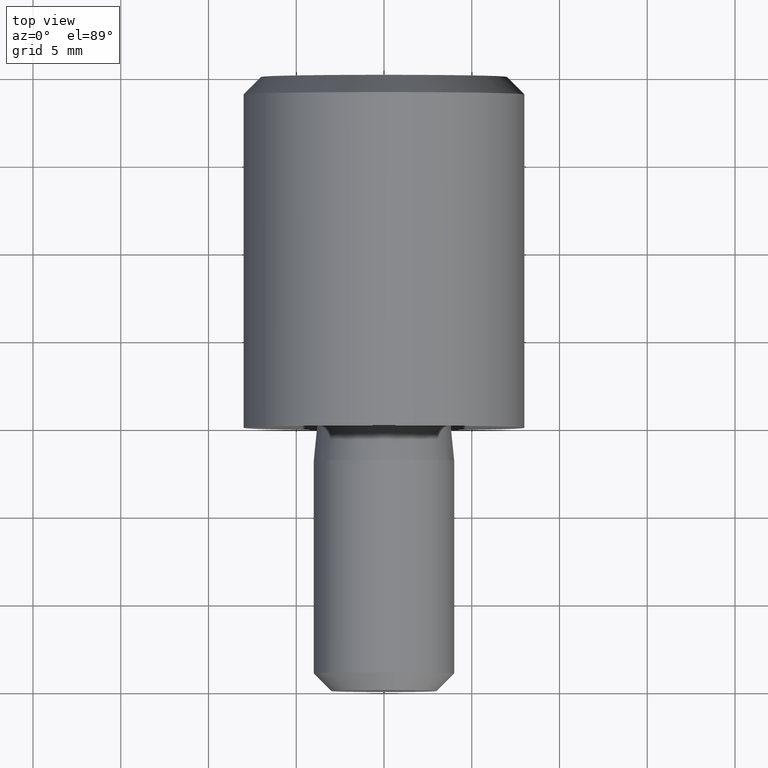
[diagram: clean part render]
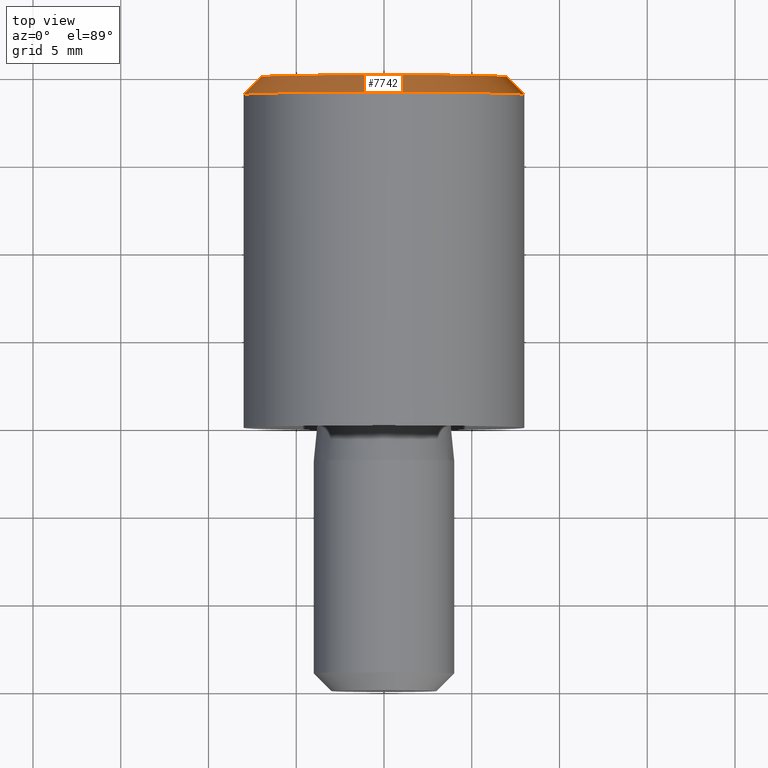
[diagram: same view with one face highlighted and labeled with its STEP entity id]
A machine part, top view. The second image highlights one B-rep face of the part: STEP entity #7742.
In plain terms, the highlighted conical surface has half-angle 45 deg.
Its self-contained STEP definition (entity closure, byte-faithful):
#344 = CARTESIAN_POINT ( 'NONE',  ( 1.685159948091755500E-015, 19.00000000000000400, 0.0000000000000000000 ) ) ;
#564 = ORIENTED_EDGE ( 'NONE', *, *, #11886, .F. ) ;
#690 = DIRECTION ( 'NONE',  ( -4.956352788505160300E-017, -1.000000000000000000, -0.0000000000000000000 ) ) ;
#817 = CARTESIAN_POINT ( 'NONE',  ( -7.999999999999998200, 19.00000000000000400, 9.797174393178825700E-016 ) ) ;
#1193 = DIRECTION ( 'NONE',  ( -1.000000000000000000, 0.0000000000000000000, 0.0000000000000000000 ) ) ;
#1604 = ORIENTED_EDGE ( 'NONE', *, *, #3293, .F. ) ;
#2697 = DIRECTION ( 'NONE',  ( -0.7071067811865463500, -0.7071067811865487900, 8.659560562354919300E-017 ) ) ;
#2805 = CIRCLE ( 'NONE', #7272, 8.000000000000000000 ) ;
#2941 = ORIENTED_EDGE ( 'NONE', *, *, #3878, .F. ) ;
#3032 = FACE_OUTER_BOUND ( 'NONE', #4842, .T. ) ;
#3118 = CARTESIAN_POINT ( 'NONE',  ( 1.734723475976806900E-015, 20.00000000000000000, 0.0000000000000000000 ) ) ;
#3293 = EDGE_CURVE ( 'NONE', #6011, #12555, #11040, .T. ) ;
#3427 = DIRECTION ( 'NONE',  ( 0.7071067811865463500, -0.7071067811865487900, 0.0000000000000000000 ) ) ;
#3625 = DIRECTION ( 'NONE',  ( -1.000000000000000000, 0.0000000000000000000, 0.0000000000000000000 ) ) ;
#3878 = EDGE_CURVE ( 'NONE', #11097, #6011, #8965, .T. ) ;
#4177 = CARTESIAN_POINT ( 'NONE',  ( 8.000000000000001800, 19.00000000000000400, 0.0000000000000000000 ) ) ;
#4842 = EDGE_LOOP ( 'NONE', ( #2941, #12314, #564, #1604 ) ) ;
#5059 = DIRECTION ( 'NONE',  ( 4.956352788505162800E-017, 1.000000000000000000, 0.0000000000000000000 ) ) ;
#5762 = DIRECTION ( 'NONE',  ( 1.000000000000000000, 0.0000000000000000000, 0.0000000000000000000 ) ) ;
#6011 = VERTEX_POINT ( 'NONE', #6721 ) ;
#6550 = CARTESIAN_POINT ( 'NONE',  ( 8.000000000000001800, 19.00000000000000400, 0.0000000000000000000 ) ) ;
#6687 = CONICAL_SURFACE ( 'NONE', #11587, 8.000000000000000000, 0.7853981633974466100 ) ;
#6721 = CARTESIAN_POINT ( 'NONE',  ( 7.000000000000008000, 20.00000000000000000, 0.0000000000000000000 ) ) ;
#7095 = AXIS2_PLACEMENT_3D ( 'NONE', #3118, #5059, #1193 ) ;
#7272 = AXIS2_PLACEMENT_3D ( 'NONE', #7859, #690, #3625 ) ;
#7742 = ADVANCED_FACE ( 'NONE', ( #3032 ), #6687, .T. ) ;
#7859 = CARTESIAN_POINT ( 'NONE',  ( 1.685159948091755500E-015, 19.00000000000000400, 0.0000000000000000000 ) ) ;
#8182 = VECTOR ( 'NONE', #3427, 1000.000000000000000 ) ;
#8965 = CIRCLE ( 'NONE', #7095, 7.000000000000006200 ) ;
#10060 = VERTEX_POINT ( 'NONE', #10097 ) ;
#10097 = CARTESIAN_POINT ( 'NONE',  ( -7.999999999999998200, 19.00000000000000400, 9.797174393178825700E-016 ) ) ;
#10114 = CARTESIAN_POINT ( 'NONE',  ( -7.000000000000004400, 20.00000000000000000, 9.184850993605151900E-016 ) ) ;
#10180 = LINE ( 'NONE', #817, #10509 ) ;
#10509 = VECTOR ( 'NONE', #2697, 1000.000000000000000 ) ;
#11040 = LINE ( 'NONE', #6550, #8182 ) ;
#11097 = VERTEX_POINT ( 'NONE', #10114 ) ;
#11587 = AXIS2_PLACEMENT_3D ( 'NONE', #344, #11824, #5762 ) ;
#11824 = DIRECTION ( 'NONE',  ( -4.956352788505160300E-017, -1.000000000000000000, -0.0000000000000000000 ) ) ;
#11886 = EDGE_CURVE ( 'NONE', #12555, #10060, #2805, .T. ) ;
#12314 = ORIENTED_EDGE ( 'NONE', *, *, #13113, .T. ) ;
#12555 = VERTEX_POINT ( 'NONE', #4177 ) ;
#13113 = EDGE_CURVE ( 'NONE', #11097, #10060, #10180, .T. ) ;